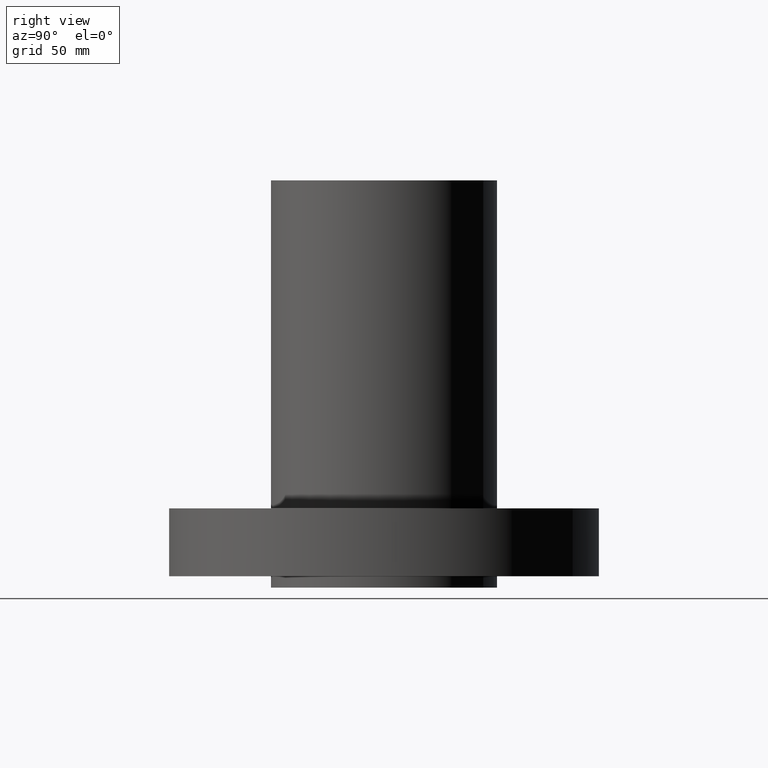
[diagram: clean part render]
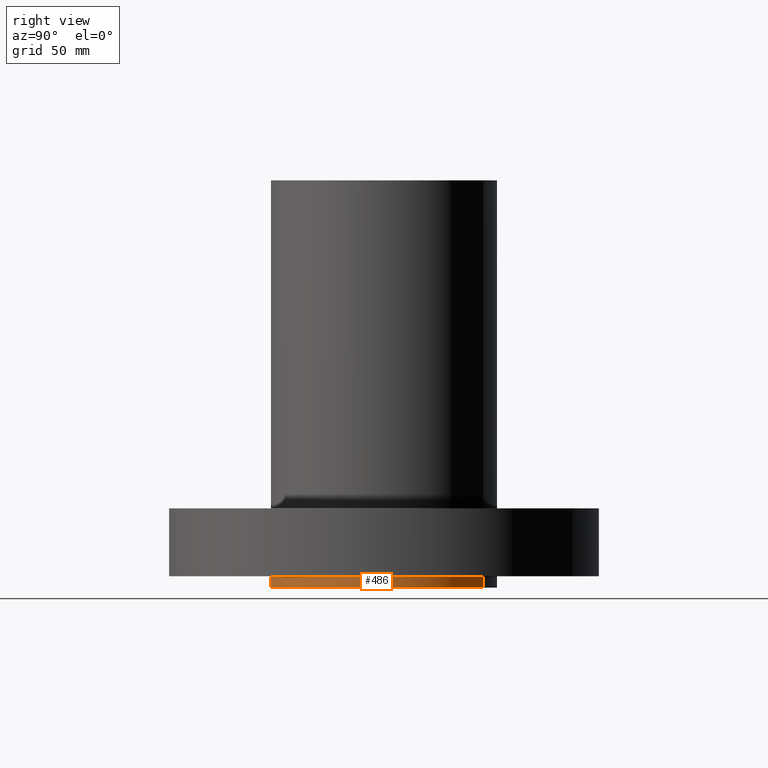
[diagram: same view with one face highlighted and labeled with its STEP entity id]
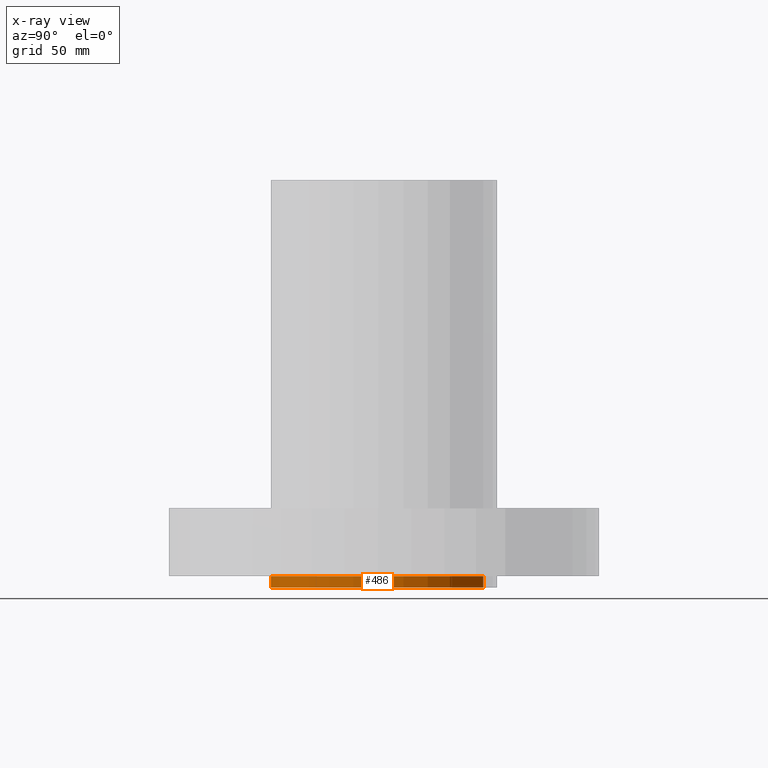
[diagram: x-ray of the same camera — body ghosted, the highlighted face saturated]
A machine part, right view. The second image highlights one B-rep face of the part: STEP entity #486.
The next image is the same camera in x-ray: the body ghosted, the highlighted face saturated — about 0% of this face is hidden behind the body in this view.
In plain terms, the highlighted cylindrical surface (partial cylindrical patch) has radius 63.5 mm, axis along (0, 0, -1).
Its self-contained STEP definition (entity closure, byte-faithful):
#109=AXIS2_PLACEMENT_3D('Circle Axis2P3D',#107,#108,$) ;
#310=AXIS2_PLACEMENT_3D('Cylinder Axis2P3D',#307,#308,#309) ;
#451=AXIS2_PLACEMENT_3D('Circle Axis2P3D',#449,#450,$) ;
#107=CARTESIAN_POINT('Axis2P3D Location',(0.,0.,0.)) ;
#111=CARTESIAN_POINT('Vertex',(1.19856384652,2.19395640473,1.1189649382E-015)) ;
#113=CARTESIAN_POINT('Vertex',(-1.19856384652,-2.19395640473,1.1189649382E-015)) ;
#307=CARTESIAN_POINT('Axis2P3D Location',(0.,0.,4.25000000002)) ;
#444=CARTESIAN_POINT('Vertex',(-1.19856384652,-2.19395640473,-0.250000000001)) ;
#446=CARTESIAN_POINT('Vertex',(1.19856384652,2.19395640473,-0.250000000001)) ;
#449=CARTESIAN_POINT('Axis2P3D Location',(0.,0.,-0.250000000001)) ;
#463=CARTESIAN_POINT('Line Origine',(-1.19856384652,-2.19395640473,-0.125)) ;
#468=CARTESIAN_POINT('Line Origine',(1.19856384652,2.19395640473,-0.125)) ;
#108=DIRECTION('Axis2P3D Direction',(0.,0.,-0.0393700787402)) ;
#308=DIRECTION('Axis2P3D Direction',(0.,0.,-0.0393700787402)) ;
#309=DIRECTION('Axis2P3D XDirection',(0.0188750212049,0.0345504945626,0.)) ;
#450=DIRECTION('Axis2P3D Direction',(0.,0.,-0.0393700787402)) ;
#464=DIRECTION('Vector Direction',(0.,0.,-0.0393700787402)) ;
#469=DIRECTION('Vector Direction',(0.,0.,-0.0393700787402)) ;
#465=VECTOR('Line Direction',#464,0.0393700787402) ;
#470=VECTOR('Line Direction',#469,0.0393700787402) ;
#481=ORIENTED_EDGE('',*,*,#453,.F.) ;
#482=ORIENTED_EDGE('',*,*,#472,.T.) ;
#483=ORIENTED_EDGE('',*,*,#115,.T.) ;
#484=ORIENTED_EDGE('',*,*,#467,.F.) ;
#486=ADVANCED_FACE('PartBody',(#485),#311,.T.) ;
#110=CIRCLE('generated circle',#109,2.50000000001) ;
#452=CIRCLE('generated circle',#451,2.50000000001) ;
#311=CYLINDRICAL_SURFACE('generated cylinder',#310,2.50000000001) ;
#115=EDGE_CURVE('',#112,#114,#110,.T.) ;
#453=EDGE_CURVE('',#447,#445,#452,.T.) ;
#467=EDGE_CURVE('',#445,#114,#466,.F.) ;
#472=EDGE_CURVE('',#447,#112,#471,.F.) ;
#480=EDGE_LOOP('',(#481,#482,#483,#484)) ;
#485=FACE_OUTER_BOUND('',#480,.T.) ;
#466=LINE('Line',#463,#465) ;
#471=LINE('Line',#468,#470) ;
#112=VERTEX_POINT('',#111) ;
#114=VERTEX_POINT('',#113) ;
#445=VERTEX_POINT('',#444) ;
#447=VERTEX_POINT('',#446) ;